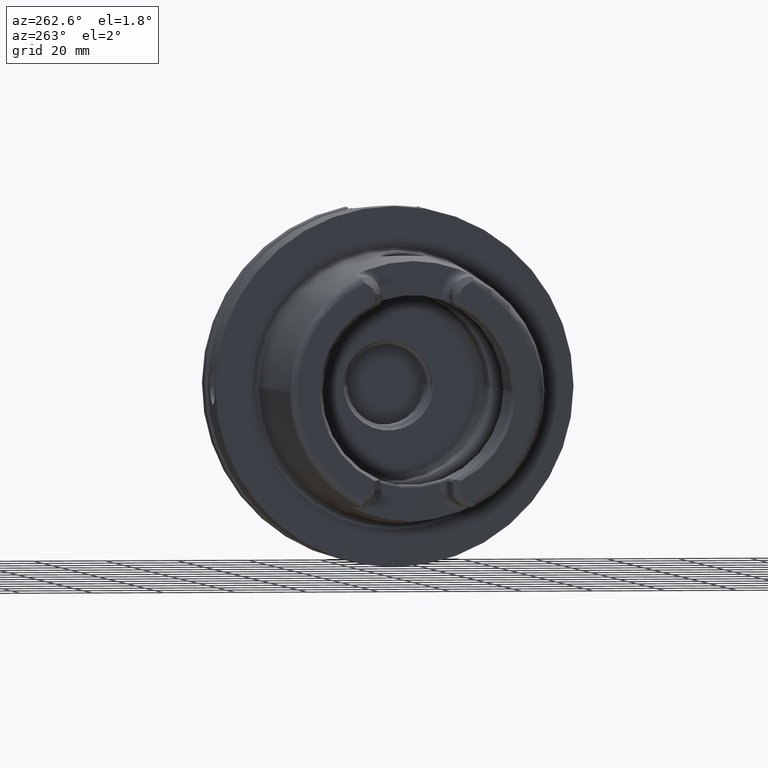
[diagram: clean part render]
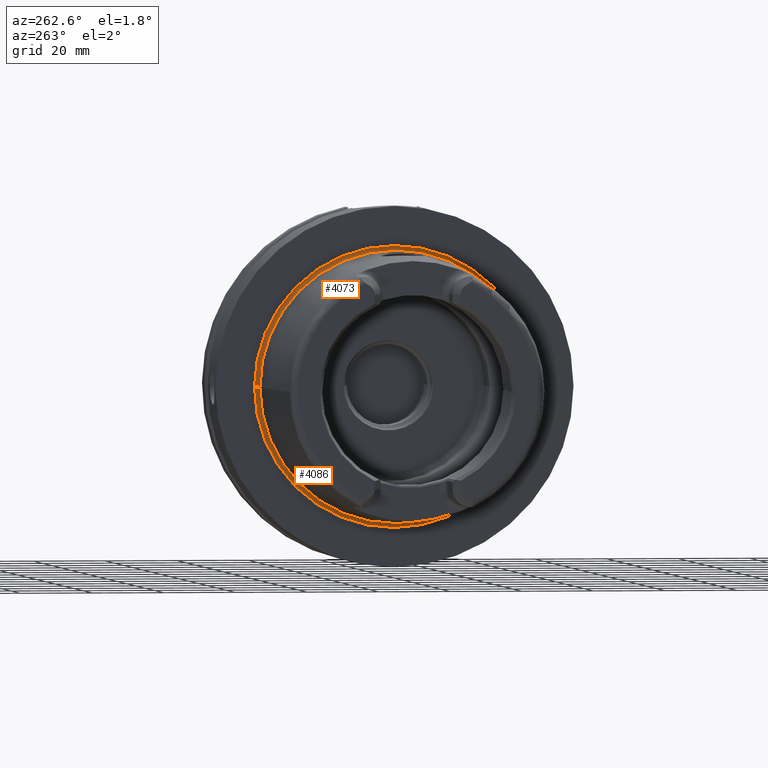
[diagram: same view with one multi-face feature highlighted, each face labeled with its STEP entity id]
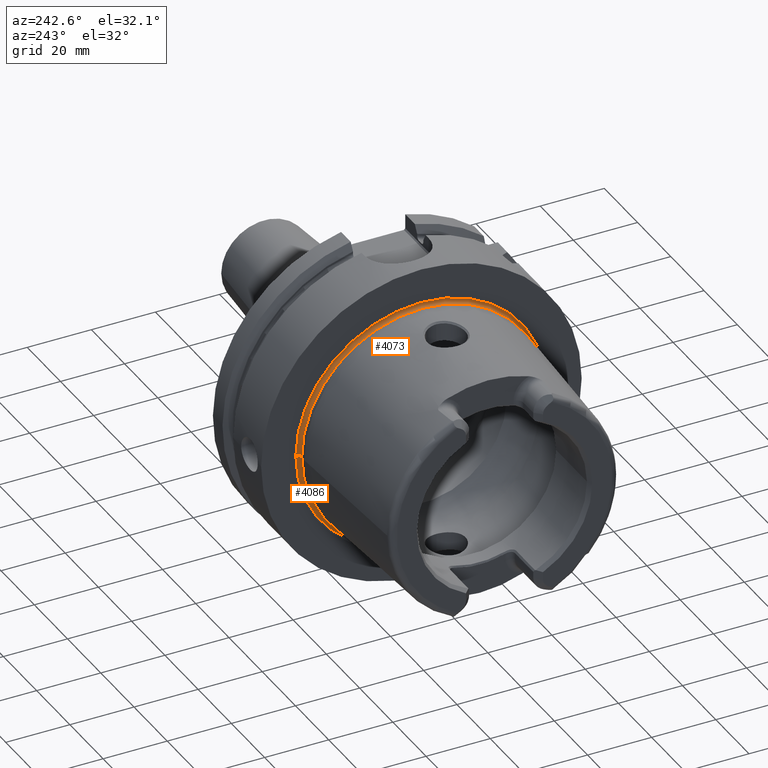
[diagram: same view with one multi-face feature highlighted, each face labeled with its STEP entity id]
A machine part, auxiliary view. The highlighted faces form ONE feature: a constant-radius fillet chain: 2 tangent blend faces with common blend radius 1 mm. The faces share edges in the B-rep.
A second angle (auxiliary view) of the same feature is appended — it is thin or edge-on in the first view.
Their STEP definitions:
[1] entity #4086 (Torus):
#867=CARTESIAN_POINT('',(-7.005712886803E-1,0.E0,0.E0));
#868=DIRECTION('',(-1.E0,0.E0,0.E0));
#869=DIRECTION('',(0.E0,1.E0,0.E0));
#870=AXIS2_PLACEMENT_3D('',#867,#868,#869);
#882=CARTESIAN_POINT('',(-7.005712886803E-1,3.868225E1,0.E0));
#883=DIRECTION('',(0.E0,0.E0,-1.E0));
#884=DIRECTION('',(9.304175679820E-1,3.665012267243E-1,0.E0));
#885=AXIS2_PLACEMENT_3D('',#882,#883,#884);
#887=CARTESIAN_POINT('',(-7.005712886803E-1,-3.868225E1,0.E0));
#888=DIRECTION('',(0.E0,0.E0,1.E0));
#889=DIRECTION('',(9.304175679820E-1,-3.665012267243E-1,0.E0));
#890=AXIS2_PLACEMENT_3D('',#887,#888,#889);
#892=CARTESIAN_POINT('',(2.298462793018E-1,0.E0,0.E0));
#893=DIRECTION('',(-1.E0,0.E0,0.E0));
#894=DIRECTION('',(0.E0,1.E0,0.E0));
#895=AXIS2_PLACEMENT_3D('',#892,#893,#894);
#2697=CARTESIAN_POINT('',(2.298462793018E-1,-3.904875122672E1,0.E0));
#2698=CARTESIAN_POINT('',(-7.005712886803E-1,-3.768225E1,0.E0));
#2699=VERTEX_POINT('',#2697);
#2700=VERTEX_POINT('',#2698);
#2705=CARTESIAN_POINT('',(2.298462793018E-1,3.904875122672E1,0.E0));
#2706=CARTESIAN_POINT('',(-7.005712886803E-1,3.768225E1,0.E0));
#2707=VERTEX_POINT('',#2705);
#2708=VERTEX_POINT('',#2706);
#4074=CARTESIAN_POINT('',(-7.005712886803E-1,0.E0,0.E0));
#4075=DIRECTION('',(-1.E0,0.E0,0.E0));
#4076=DIRECTION('',(0.E0,-1.E0,0.E0));
#4077=AXIS2_PLACEMENT_3D('',#4074,#4075,#4076);
#4078=TOROIDAL_SURFACE('',#4077,3.868225E1,1.E0);
#4079=ORIENTED_EDGE('',*,*,#4067,.T.);
#4080=ORIENTED_EDGE('',*,*,#4041,.T.);
#4081=ORIENTED_EDGE('',*,*,#4064,.F.);
#4083=ORIENTED_EDGE('',*,*,#4082,.F.);
#4084=EDGE_LOOP('',(#4079,#4080,#4081,#4083));
#4085=FACE_OUTER_BOUND('',#4084,.F.);
#4086=ADVANCED_FACE('',(#4085),#4078,.F.);
#871=CIRCLE('',#870,3.768225E1);
#886=CIRCLE('',#885,1.E0);
#891=CIRCLE('',#890,1.E0);
#896=CIRCLE('',#895,3.904875122672E1);
#4041=EDGE_CURVE('',#2708,#2700,#871,.T.);
#4064=EDGE_CURVE('',#2699,#2700,#891,.T.);
#4067=EDGE_CURVE('',#2707,#2708,#886,.T.);
#4082=EDGE_CURVE('',#2707,#2699,#896,.T.);
[2] entity #4073 (Torus):
#872=CARTESIAN_POINT('',(-7.005712886803E-1,0.E0,0.E0));
#873=DIRECTION('',(-1.E0,0.E0,0.E0));
#874=DIRECTION('',(0.E0,-1.E0,0.E0));
#875=AXIS2_PLACEMENT_3D('',#872,#873,#874);
#877=CARTESIAN_POINT('',(2.298462793018E-1,0.E0,0.E0));
#878=DIRECTION('',(-1.E0,0.E0,0.E0));
#879=DIRECTION('',(0.E0,-1.E0,0.E0));
#880=AXIS2_PLACEMENT_3D('',#877,#878,#879);
#882=CARTESIAN_POINT('',(-7.005712886803E-1,3.868225E1,0.E0));
#883=DIRECTION('',(0.E0,0.E0,-1.E0));
#884=DIRECTION('',(9.304175679820E-1,3.665012267243E-1,0.E0));
#885=AXIS2_PLACEMENT_3D('',#882,#883,#884);
#887=CARTESIAN_POINT('',(-7.005712886803E-1,-3.868225E1,0.E0));
#888=DIRECTION('',(0.E0,0.E0,1.E0));
#889=DIRECTION('',(9.304175679820E-1,-3.665012267243E-1,0.E0));
#890=AXIS2_PLACEMENT_3D('',#887,#888,#889);
#2697=CARTESIAN_POINT('',(2.298462793018E-1,-3.904875122672E1,0.E0));
#2698=CARTESIAN_POINT('',(-7.005712886803E-1,-3.768225E1,0.E0));
#2699=VERTEX_POINT('',#2697);
#2700=VERTEX_POINT('',#2698);
#2705=CARTESIAN_POINT('',(2.298462793018E-1,3.904875122672E1,0.E0));
#2706=CARTESIAN_POINT('',(-7.005712886803E-1,3.768225E1,0.E0));
#2707=VERTEX_POINT('',#2705);
#2708=VERTEX_POINT('',#2706);
#4059=CARTESIAN_POINT('',(-7.005712886803E-1,0.E0,0.E0));
#4060=DIRECTION('',(-1.E0,0.E0,0.E0));
#4061=DIRECTION('',(0.E0,1.E0,0.E0));
#4062=AXIS2_PLACEMENT_3D('',#4059,#4060,#4061);
#4063=TOROIDAL_SURFACE('',#4062,3.868225E1,1.E0);
#4065=ORIENTED_EDGE('',*,*,#4064,.T.);
#4066=ORIENTED_EDGE('',*,*,#4054,.T.);
#4068=ORIENTED_EDGE('',*,*,#4067,.F.);
#4070=ORIENTED_EDGE('',*,*,#4069,.F.);
#4071=EDGE_LOOP('',(#4065,#4066,#4068,#4070));
#4072=FACE_OUTER_BOUND('',#4071,.F.);
#4073=ADVANCED_FACE('',(#4072),#4063,.F.);
#876=CIRCLE('',#875,3.768225E1);
#881=CIRCLE('',#880,3.904875122672E1);
#886=CIRCLE('',#885,1.E0);
#891=CIRCLE('',#890,1.E0);
#4054=EDGE_CURVE('',#2700,#2708,#876,.T.);
#4064=EDGE_CURVE('',#2699,#2700,#891,.T.);
#4067=EDGE_CURVE('',#2707,#2708,#886,.T.);
#4069=EDGE_CURVE('',#2699,#2707,#881,.T.);